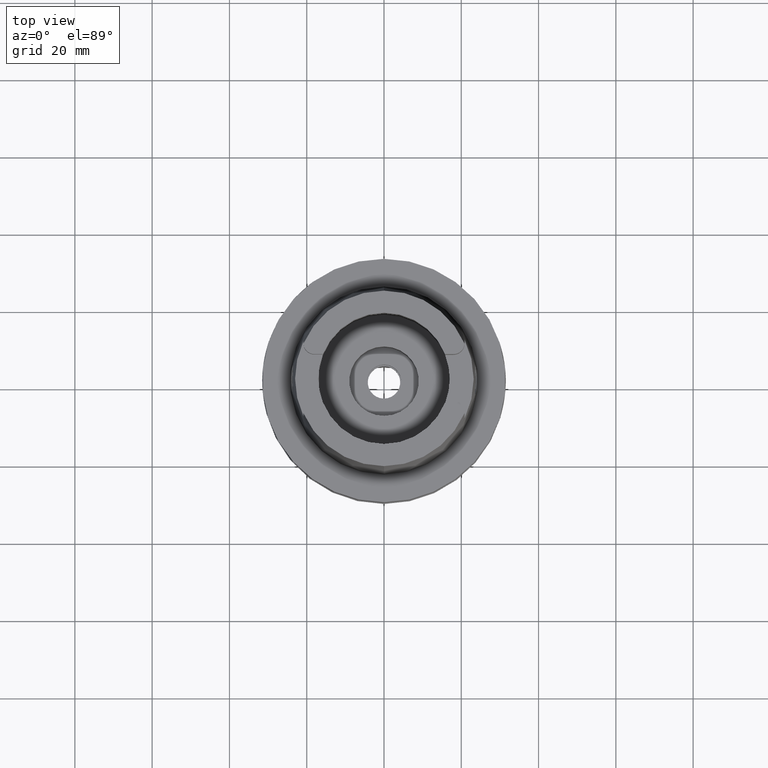
[diagram: clean part render]
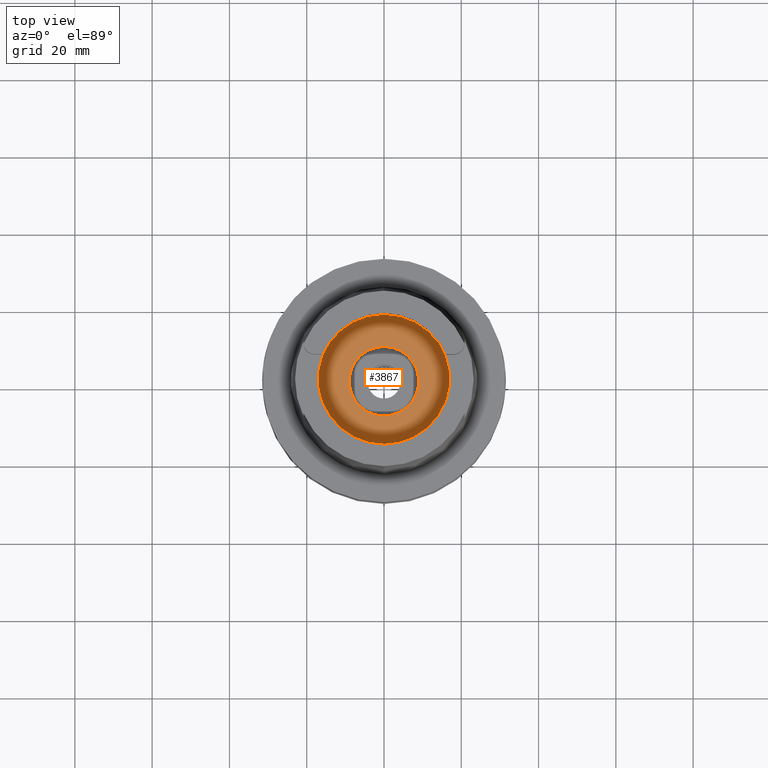
[diagram: same view with one face highlighted and labeled with its STEP entity id]
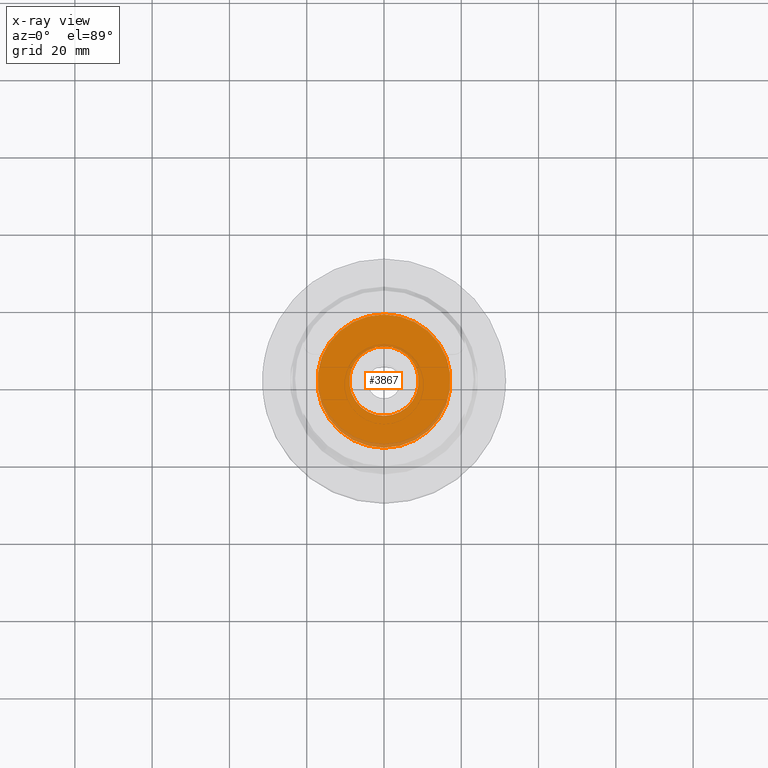
[diagram: x-ray of the same camera — body ghosted, the highlighted face saturated]
A machine part, top view. The second image highlights one B-rep face of the part: STEP entity #3867.
The next image is the same camera in x-ray: the body ghosted, the highlighted face saturated — about 6% of this face is hidden behind the body in this view.
In plain terms, the highlighted planar face has unit normal (0, 0, 1).
Its self-contained STEP definition (entity closure, byte-faithful):
#740=CARTESIAN_POINT('',(0.E0,0.E0,-9.95E0));
#741=DIRECTION('',(0.E0,0.E0,-1.E0));
#742=DIRECTION('',(0.E0,-1.E0,0.E0));
#743=AXIS2_PLACEMENT_3D('',#740,#741,#742);
#748=CARTESIAN_POINT('',(0.E0,0.E0,-9.95E0));
#749=DIRECTION('',(0.E0,0.E0,-1.E0));
#750=DIRECTION('',(0.E0,1.E0,0.E0));
#751=AXIS2_PLACEMENT_3D('',#748,#749,#750);
#756=CARTESIAN_POINT('',(0.E0,0.E0,-9.95E0));
#757=DIRECTION('',(0.E0,0.E0,1.E0));
#758=DIRECTION('',(0.E0,-1.E0,0.E0));
#759=AXIS2_PLACEMENT_3D('',#756,#757,#758);
#764=CARTESIAN_POINT('',(0.E0,0.E0,-9.95E0));
#765=DIRECTION('',(0.E0,0.E0,1.E0));
#766=DIRECTION('',(0.E0,1.E0,0.E0));
#767=AXIS2_PLACEMENT_3D('',#764,#765,#766);
#3054=CARTESIAN_POINT('',(0.E0,1.725E1,-9.95E0));
#3055=VERTEX_POINT('',#3054);
#3056=CARTESIAN_POINT('',(0.E0,-1.725E1,-9.95E0));
#3057=VERTEX_POINT('',#3056);
#3058=CARTESIAN_POINT('',(0.E0,-9.E0,-9.95E0));
#3059=CARTESIAN_POINT('',(0.E0,9.E0,-9.95E0));
#3060=VERTEX_POINT('',#3058);
#3061=VERTEX_POINT('',#3059);
#3852=CARTESIAN_POINT('',(0.E0,0.E0,-9.95E0));
#3853=DIRECTION('',(0.E0,0.E0,1.E0));
#3854=DIRECTION('',(0.E0,1.E0,0.E0));
#3855=AXIS2_PLACEMENT_3D('',#3852,#3853,#3854);
#3856=PLANE('',#3855);
#3857=ORIENTED_EDGE('',*,*,#3831,.T.);
#3858=ORIENTED_EDGE('',*,*,#3847,.T.);
#3859=EDGE_LOOP('',(#3857,#3858));
#3860=FACE_OUTER_BOUND('',#3859,.F.);
#3862=ORIENTED_EDGE('',*,*,#3861,.T.);
#3864=ORIENTED_EDGE('',*,*,#3863,.T.);
#3865=EDGE_LOOP('',(#3862,#3864));
#3866=FACE_BOUND('',#3865,.F.);
#744=CIRCLE('',#743,1.725E1);
#752=CIRCLE('',#751,1.725E1);
#760=CIRCLE('',#759,9.E0);
#768=CIRCLE('',#767,9.E0);
#3831=EDGE_CURVE('',#3057,#3055,#744,.T.);
#3847=EDGE_CURVE('',#3055,#3057,#752,.T.);
#3861=EDGE_CURVE('',#3060,#3061,#760,.T.);
#3863=EDGE_CURVE('',#3061,#3060,#768,.T.);
#3867=ADVANCED_FACE('',(#3860,#3866),#3856,.T.);